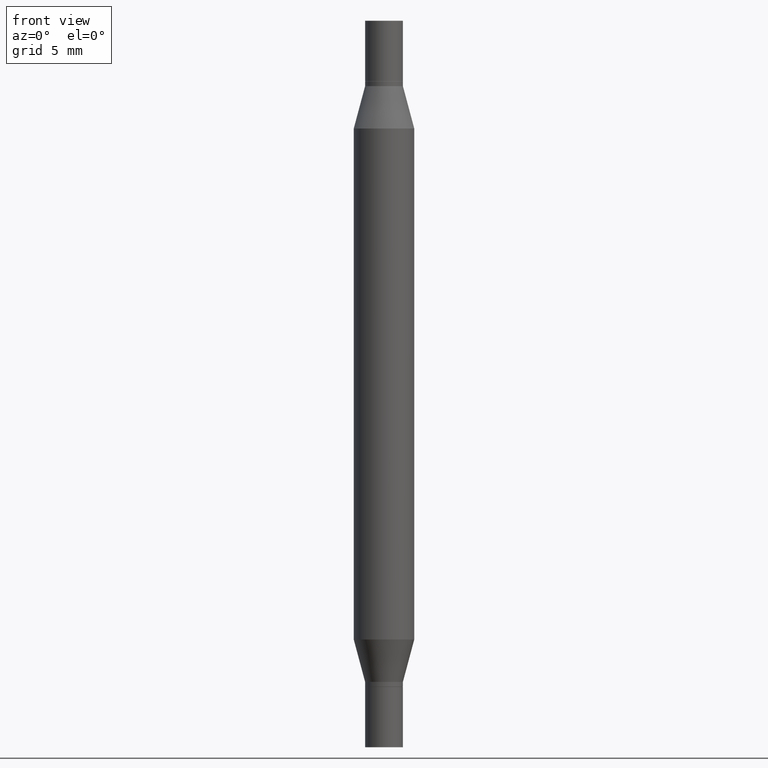
[diagram: clean part render]
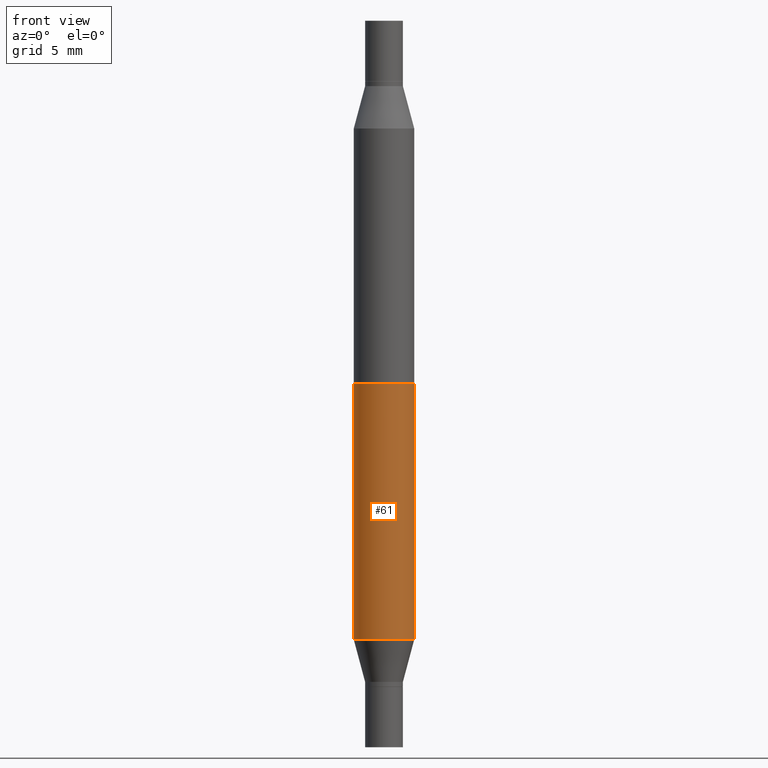
[diagram: same view with one face highlighted and labeled with its STEP entity id]
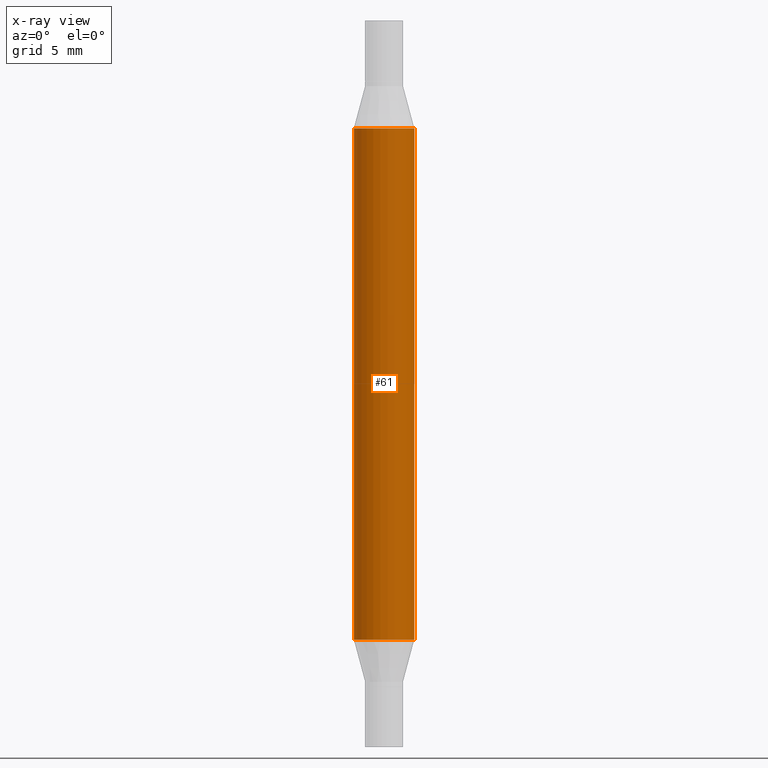
[diagram: x-ray of the same camera — body ghosted, the highlighted face saturated]
A machine part, front view. The second image highlights one B-rep face of the part: STEP entity #61.
The next image is the same camera in x-ray: the body ghosted, the highlighted face saturated — about 0% of this face is hidden behind the body in this view.
In plain terms, the highlighted cylindrical surface (edge-blend (fillet) strip) has radius 1.5875 mm, axis along (-0, -0, -1).
Its self-contained STEP definition (entity closure, byte-faithful):
#18 = DIRECTION ( 'NONE',  ( 1.000000000000000000, -6.982962677686262766E-15, 0.000000000000000000 ) ) ;
#43 = EDGE_CURVE ( 'NONE', #509, #591, #588, .T. ) ;
#61 = ADVANCED_FACE ( 'NONE', ( #532 ), #620, .T. ) ;
#88 = VECTOR ( 'NONE', #685, 39.37007874015748143 ) ;
#137 = ORIENTED_EDGE ( 'NONE', *, *, #43, .T. ) ;
#153 = DIRECTION ( 'NONE',  ( 1.000000000000000000, -6.982962677686262766E-15, 0.000000000000000000 ) ) ;
#154 = CARTESIAN_POINT ( 'NONE',  ( 0.06250000000000000000, -5.673899992708591942E-15, -1.499999999999999556 ) ) ;
#204 = CARTESIAN_POINT ( 'NONE',  ( 0.06250000000000000000, -1.213176917961717218E-15, -0.2225165914374896692 ) ) ;
#209 = AXIS2_PLACEMENT_3D ( 'NONE', #389, #609, #153 ) ;
#211 = VECTOR ( 'NONE', #977, 39.37007874015748143 ) ;
#298 = DIRECTION ( 'NONE',  ( -2.445468806185136597E-29, 3.491481338843145583E-15, 1.000000000000000000 ) ) ;
#314 = ORIENTED_EDGE ( 'NONE', *, *, #641, .F. ) ;
#353 = AXIS2_PLACEMENT_3D ( 'NONE', #557, #625, #864 ) ;
#379 = EDGE_CURVE ( 'NONE', #675, #403, #777, .T. ) ;
#386 = CARTESIAN_POINT ( 'NONE',  ( -0.06250000000000000000, -4.808683700492480339E-15, -1.499999999999999556 ) ) ;
#389 = CARTESIAN_POINT ( 'NONE',  ( 0.000000000000000000, -5.237464825353201062E-15, -1.499999999999999556 ) ) ;
#403 = VERTEX_POINT ( 'NONE', #204 ) ;
#419 = EDGE_LOOP ( 'NONE', ( #576, #584, #137, #314 ) ) ;
#495 = AXIS2_PLACEMENT_3D ( 'NONE', #676, #298, #18 ) ;
#509 = VERTEX_POINT ( 'NONE', #652 ) ;
#532 = FACE_OUTER_BOUND ( 'NONE', #419, .T. ) ;
#533 = CARTESIAN_POINT ( 'NONE',  ( -0.06250000000000000000, -3.479606257456047271E-16, -0.2225165914374896692 ) ) ;
#557 = CARTESIAN_POINT ( 'NONE',  ( 3.124045826058680346E-29, -7.767417506063242664E-16, -0.2225165914374896692 ) ) ;
#576 = ORIENTED_EDGE ( 'NONE', *, *, #379, .F. ) ;
#584 = ORIENTED_EDGE ( 'NONE', *, *, #681, .T. ) ;
#588 = CIRCLE ( 'NONE', #495, 0.06250000000000000000 ) ;
#591 = VERTEX_POINT ( 'NONE', #598 ) ;
#598 = CARTESIAN_POINT ( 'NONE',  ( 0.06250000000000000000, -4.896744649033128608E-15, -1.277483408562509970 ) ) ;
#609 = DIRECTION ( 'NONE',  ( -2.445468806185136597E-29, -3.491805094961124077E-15, -1.000000000000000000 ) ) ;
#620 = CYLINDRICAL_SURFACE ( 'NONE', #209, 0.06250000000000000000 ) ;
#625 = DIRECTION ( 'NONE',  ( 2.445468806185136597E-29, 3.491805094961124077E-15, 1.000000000000000000 ) ) ;
#641 = EDGE_CURVE ( 'NONE', #403, #591, #914, .T. ) ;
#652 = CARTESIAN_POINT ( 'NONE',  ( -0.06250000000000000000, -2.189829879271637577E-15, -1.277483408562509970 ) ) ;
#675 = VERTEX_POINT ( 'NONE', #533 ) ;
#676 = CARTESIAN_POINT ( 'NONE',  ( 3.124045826058680346E-29, -4.460309481677736938E-15, -1.277483408562509970 ) ) ;
#681 = EDGE_CURVE ( 'NONE', #675, #509, #838, .T. ) ;
#685 = DIRECTION ( 'NONE',  ( -2.445468806185136877E-29, -3.491805094961123683E-15, -1.000000000000000000 ) ) ;
#777 = CIRCLE ( 'NONE', #353, 0.06250000000000000000 ) ;
#838 = LINE ( 'NONE', #386, #88 ) ;
#864 = DIRECTION ( 'NONE',  ( 1.000000000000000000, -6.982962677686266711E-15, 0.000000000000000000 ) ) ;
#914 = LINE ( 'NONE', #154, #211 ) ;
#977 = DIRECTION ( 'NONE',  ( -2.445468806185136877E-29, -3.491805094961123683E-15, -1.000000000000000000 ) ) ;